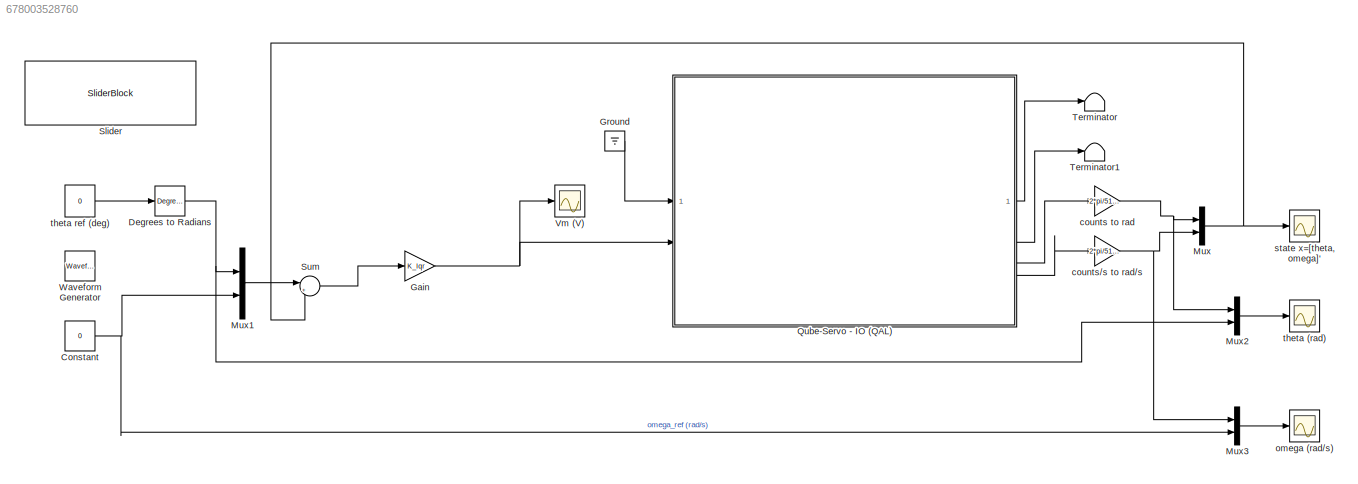
MODEL slx_678003528760
KIND model
CONFIG AbsTol = auto
CONFIG EnableMultiTasking = on
CONFIG FixedStep = 0.02
CONFIG MaxStep = auto
CONFIG MinStep = auto
CONFIG RelTol = 1e-3
CONFIG SampleTimeConstraint = Unconstrained
CONFIG SolverName = ode1
CONFIG StartTime = 0.0
CONFIG StopTime = inf
BLOCK [Constant] Constant
  Value = 0
BLOCK [Reference] Degrees to Radians  REF=simulink_extras/Transformations/Degrees to
Radians
  SourceBlock = simulink_extras/Transformations/Degrees to\nRadians
  SourceType = DegreesToRadians
BLOCK [Gain] Gain 
  Gain = K_lqr
  Multiplication = Matrix(K*u)
BLOCK [Ground] Ground
BLOCK [Mux] Mux
  DisplayOption = bar
  Inputs = 2
BLOCK [Mux] Mux1
  DisplayOption = bar
  Inputs = 2
BLOCK [Mux] Mux2
  DisplayOption = bar
  Inputs = 2
BLOCK [Mux] Mux3
  DisplayOption = bar
  Inputs = 2
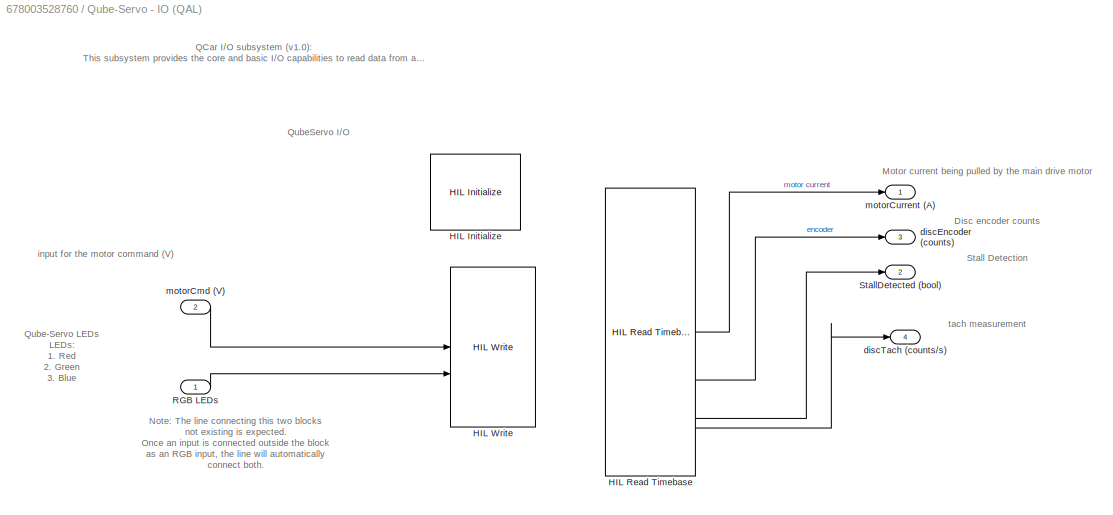
BLOCK [SubSystem] Qube-Servo - IO (QAL)
  CopyFcn = set_param(gcbh,'LinkStatus','none');
  UserDataPersistent = on
BLOCK [Reference] Qube-Servo - IO (QAL)/HIL Initialize  REF=quarc_library/Data Acquisition/Generic/Configuration/HIL Initialize
  AttributesFormatString = %<object_name> (%<board_type>-%<board_number>)
  SourceBlock = quarc_library/Data Acquisition/Generic/Configuration/HIL Initialize
  SourceProductName = QUARC Targets
  SourceType = HIL Initialize
  UserDataPersistent = on
BLOCK [Reference] Qube-Servo - IO (QAL)/HIL Read Timebase  REF=quarc_library/Data Acquisition/Generic/Timebases/HIL Read
Timebase
  AttributesFormatString = (%<object_name>)
  SourceBlock = quarc_library/Data Acquisition/Generic/Timebases/HIL Read\nTimebase
  SourceProductName = QUARC Targets
  SourceType = HIL Read Timebase
  UserDataPersistent = on
BLOCK [Reference] Qube-Servo - IO (QAL)/HIL Write  REF=quarc_library/Data Acquisition/Generic/Immediate I//O/HIL Write
  AttributesFormatString = (%<object_name>)
  SourceBlock = quarc_library/Data Acquisition/Generic/Immediate I//O/HIL Write
  SourceProductName = QUARC Targets
  SourceType = HIL Write
  UserDataPersistent = on
BLOCK [Inport] Qube-Servo - IO (QAL)/RGB LEDs
BLOCK [Outport] Qube-Servo - IO (QAL)/StallDetected (bool)
  Port = 2
  VectorParamsAs1DForOutWhenUnconnected = off
BLOCK [Outport] Qube-Servo - IO (QAL)/discEncoder (counts)
  Port = 3
  VectorParamsAs1DForOutWhenUnconnected = off
BLOCK [Outport] Qube-Servo - IO (QAL)/discTach (counts//s)
  Port = 4
  VectorParamsAs1DForOutWhenUnconnected = off
BLOCK [Inport] Qube-Servo - IO (QAL)/motorCmd (V)
  Port = 2
BLOCK [Outport] Qube-Servo - IO (QAL)/motorCurrent (A)
  VectorParamsAs1DForOutWhenUnconnected = off
BLOCK [SliderBlock] Slider
  ScaleMax = 90
  ScaleMin = -90
BLOCK [Sum] Sum
  Inputs = |+-
BLOCK [Terminator] Terminator
BLOCK [Terminator] Terminator1
BLOCK [Scope] Vm (V)
  Floating = off
  NumInputPorts = 1
  ScopeSpecificationString = Simulink.scopes.TimeScopeBlockCfg('CurrentConfiguration', extmgr.ConfigurationSet(extmgr.Configuration('Core','General UI',true),extmgr.Configuration('Core','Source UI',true),extmgr.Configuration('Sources','WiredSimulink',true,'DataLoggingVariableName','ScopeData1','DataLogging',true,'DataLoggingSaveFormat','StructureWithTime'),extmgr.Configuration('Visuals','Time Domain',true,'SerializedDisplays'...<+1550ch>
BLOCK [Reference] Waveform Generator  REF=simulink/Sources/Waveform
Generator
  Commented = on
  SourceBlock = simulink/Sources/Waveform\nGenerator
  SourceType = WaveformGenerator
BLOCK [Gain] counts to rad
  Gain = 2*pi/512/4
BLOCK [Gain] counts//s to rad//s
  Gain = 2*pi/512/4
BLOCK [Scope] omega (rad//s)
  Floating = off
  NumInputPorts = 1
  ScopeSpecificationString = Simulink.scopes.TimeScopeBlockCfg('CurrentConfiguration', extmgr.ConfigurationSet(extmgr.Configuration('Core','General UI',true),extmgr.Configuration('Core','Source UI',true),extmgr.Configuration('Sources','WiredSimulink',true,'DataLogging',true,'DataLoggingSaveFormat','Array'),extmgr.Configuration('Visuals','Time Domain',true,'SerializedDisplays',{struct('MinYLimReal','-15.93013','MaxYLimReal','1...<+1535ch>
BLOCK [Scope] state x=[theta, omega]'
  Floating = off
  NumInputPorts = 1
  ScopeSpecificationString = Simulink.scopes.TimeScopeBlockCfg('CurrentConfiguration', extmgr.ConfigurationSet(extmgr.Configuration('Core','General UI',true),extmgr.Configuration('Core','Source UI',true),extmgr.Configuration('Sources','WiredSimulink',true,'DataLoggingVariableName','ScopeData2','DataLogging',true,'DataLoggingSaveFormat','Array'),extmgr.Configuration('Visuals','Time Domain',true,'SerializedDisplays',{struct('Mi...<+1568ch>
BLOCK [Scope] theta (rad)
  Floating = off
  NumInputPorts = 1
  ScopeSpecificationString = Simulink.scopes.TimeScopeBlockCfg('CurrentConfiguration', extmgr.ConfigurationSet(extmgr.Configuration('Core','General UI',true),extmgr.Configuration('Core','Source UI',true),extmgr.Configuration('Sources','WiredSimulink',true,'DataLoggingVariableName','ScopeData3','DataLogging',true,'DataLoggingSaveFormat','Array'),extmgr.Configuration('Visuals','Time Domain',true,'SerializedDisplays',{struct('Mi...<+1567ch>
BLOCK [Constant] theta ref (deg)
  Value = 0
ANNOTATION Qube-Servo - IO (QAL): QCar I/O subsystem (v1.0): This subsystem provides the core and basic I/O capabilities to read data from and write data to the Qube Servo. The HIL Initialize block configures the IO settings, and the HIL Write and Read blocks are used for the actual IO.
ANNOTATION Qube-Servo - IO (QAL): Disc encoder counts
ANNOTATION Qube-Servo - IO (QAL): Stall Detection
ANNOTATION Qube-Servo - IO (QAL): tach measurement
ANNOTATION Qube-Servo - IO (QAL): Motor current being pulled by the main drive motor
ANNOTATION Qube-Servo - IO (QAL): Qube-Servo LEDs LEDs: 1. Red 2. Green 3. Blue
ANNOTATION Qube-Servo - IO (QAL): input for the motor command (V)
ANNOTATION Qube-Servo - IO (QAL): Note: The line connecting this two blocks not existing is expected. Once an input is connected outside the block as an RGB input, the line will automatically connect both.
ANNOTATION Qube-Servo - IO (QAL): QubeServo I/O
NET Constant:1 -> Mux1:2, Mux3:2
NET Degrees to Radians:1 -> Mux1:1, Mux2:2
NET Gain :1 -> Qube-Servo - IO (QAL):2, Vm (V):1
LINE Ground:1 -> Qube-Servo - IO (QAL):1
LINE Mux1:1 -> Sum:1
LINE Mux2:1 -> theta (rad):1
LINE Mux3:1 -> omega (rad//s):1
NET Mux:1 -> Sum:2, state x=[theta, omega]':1
LINE Qube-Servo - IO (QAL):1 -> Terminator:1
LINE Qube-Servo - IO (QAL):2 -> Terminator1:1
LINE Qube-Servo - IO (QAL):3 -> counts to rad:1
LINE Qube-Servo - IO (QAL):4 -> counts//s to rad//s:1
LINE Sum:1 -> Gain :1
NET counts to rad:1 -> Mux2:1, Mux:1
NET counts//s to rad//s:1 -> Mux3:1, Mux:2
LINE theta ref (deg):1 -> Degrees to Radians:1
note: NET lines group one-source signal fan-out (src -> all destinations, sorted); 1:1 wires keep LINE
